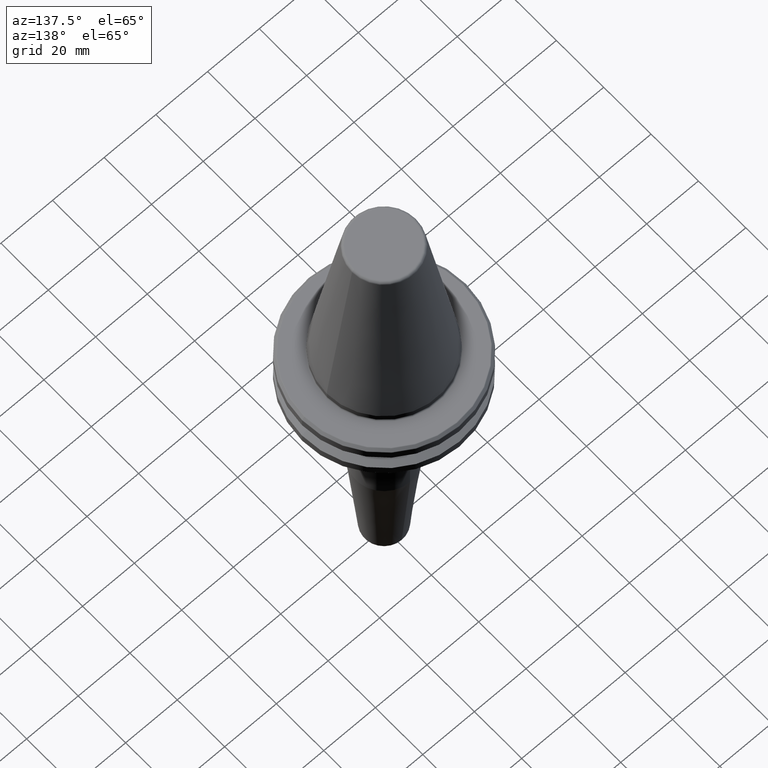
[diagram: clean part render]
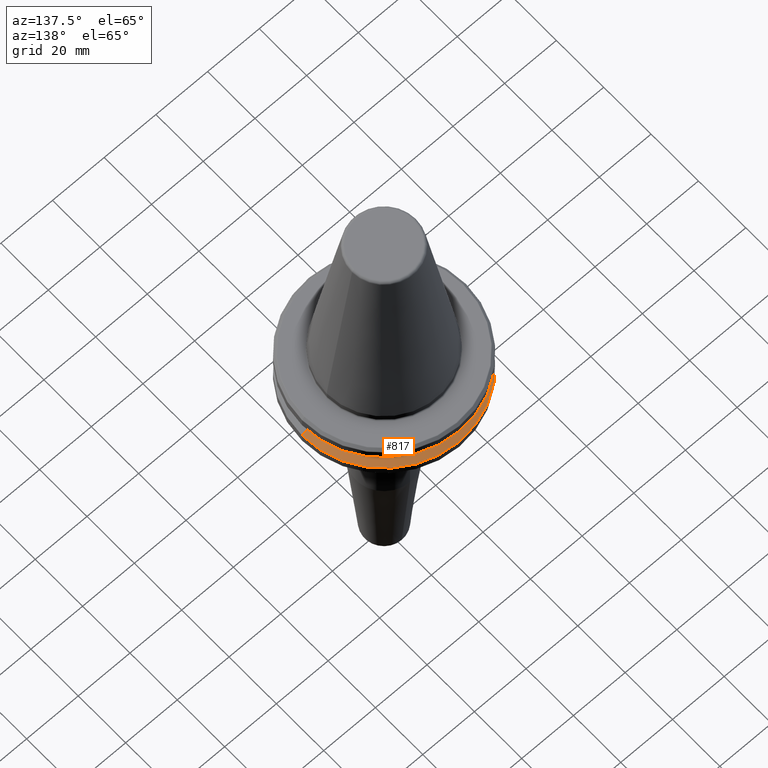
[diagram: same view with one face highlighted and labeled with its STEP entity id]
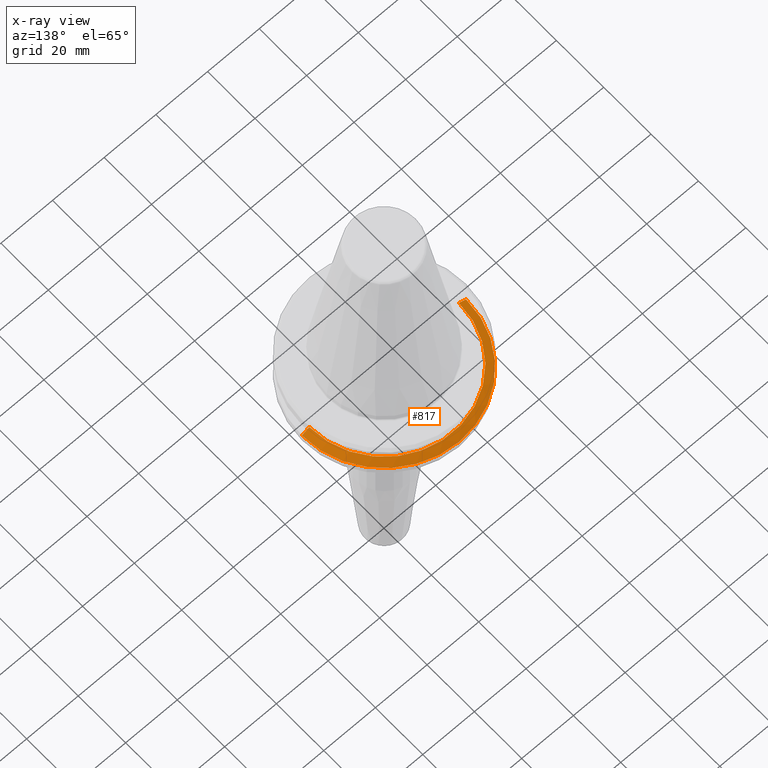
[diagram: x-ray of the same camera — body ghosted, the highlighted face saturated]
A machine part, auxiliary view. The second image highlights one B-rep face of the part: STEP entity #817.
The next image is the same camera in x-ray: the body ghosted, the highlighted face saturated — about 0% of this face is hidden behind the body in this view.
In plain terms, the highlighted conical surface has half-angle 60 deg.
Its self-contained STEP definition (entity closure, byte-faithful):
#24 = CARTESIAN_POINT ( 'NONE',  ( 31.75000000000000000, 0.0000000000000000000, -14.62183664205671200 ) ) ;
#45 = VERTEX_POINT ( 'NONE', #1254 ) ;
#62 = DIRECTION ( 'NONE',  ( 0.8660254037844420400, 1.060575238724911000E-016, -0.4999999999999943900 ) ) ;
#74 = DIRECTION ( 'NONE',  ( -0.0000000000000000000, -0.0000000000000000000, 1.000000000000000000 ) ) ;
#126 = AXIS2_PLACEMENT_3D ( 'NONE', #130, #629, #722 ) ;
#129 = ORIENTED_EDGE ( 'NONE', *, *, #438, .F. ) ;
#130 = CARTESIAN_POINT ( 'NONE',  ( 0.0000000000000000000, 0.0000000000000000000, -13.00000000000001100 ) ) ;
#258 = ORIENTED_EDGE ( 'NONE', *, *, #1205, .F. ) ;
#269 = CARTESIAN_POINT ( 'NONE',  ( 28.94089653438085100, 3.716245608910634800E-015, -13.00000000000001100 ) ) ;
#303 = EDGE_CURVE ( 'NONE', #425, #45, #610, .T. ) ;
#353 = AXIS2_PLACEMENT_3D ( 'NONE', #432, #811, #1186 ) ;
#425 = VERTEX_POINT ( 'NONE', #24 ) ;
#432 = CARTESIAN_POINT ( 'NONE',  ( 0.0000000000000000000, 0.0000000000000000000, -13.00000000000001100 ) ) ;
#438 = EDGE_CURVE ( 'NONE', #1028, #672, #1165, .T. ) ;
#494 = AXIS2_PLACEMENT_3D ( 'NONE', #574, #74, #561 ) ;
#498 = LINE ( 'NONE', #643, #1226 ) ;
#550 = CARTESIAN_POINT ( 'NONE',  ( -28.94089653438085100, 0.0000000000000000000, -13.00000000000001100 ) ) ;
#561 = DIRECTION ( 'NONE',  ( 1.000000000000000000, 0.0000000000000000000, 0.0000000000000000000 ) ) ;
#574 = CARTESIAN_POINT ( 'NONE',  ( 0.0000000000000000000, 0.0000000000000000000, -14.62183664205671200 ) ) ;
#610 = CIRCLE ( 'NONE', #494, 31.75000000000000000 ) ;
#629 = DIRECTION ( 'NONE',  ( -0.0000000000000000000, -0.0000000000000000000, 1.000000000000000000 ) ) ;
#643 = CARTESIAN_POINT ( 'NONE',  ( 28.94089653438085100, 3.544237630528423800E-015, -13.00000000000001100 ) ) ;
#672 = VERTEX_POINT ( 'NONE', #1162 ) ;
#722 = DIRECTION ( 'NONE',  ( 1.000000000000000000, 0.0000000000000000000, 0.0000000000000000000 ) ) ;
#740 = LINE ( 'NONE', #550, #1258 ) ;
#774 = FACE_OUTER_BOUND ( 'NONE', #905, .T. ) ;
#811 = DIRECTION ( 'NONE',  ( 0.0000000000000000000, 0.0000000000000000000, -1.000000000000000000 ) ) ;
#817 = ADVANCED_FACE ( 'NONE', ( #774 ), #979, .T. ) ;
#849 = ORIENTED_EDGE ( 'NONE', *, *, #303, .T. ) ;
#905 = EDGE_LOOP ( 'NONE', ( #129, #1222, #849, #258 ) ) ;
#979 = CONICAL_SURFACE ( 'NONE', #353, 28.94089653438085100, 1.047197551196604300 ) ;
#1028 = VERTEX_POINT ( 'NONE', #269 ) ;
#1162 = CARTESIAN_POINT ( 'NONE',  ( -28.94089653438085100, 0.0000000000000000000, -13.00000000000001100 ) ) ;
#1165 = CIRCLE ( 'NONE', #126, 28.94089653438085100 ) ;
#1186 = DIRECTION ( 'NONE',  ( -1.000000000000000000, 0.0000000000000000000, 0.0000000000000000000 ) ) ;
#1205 = EDGE_CURVE ( 'NONE', #672, #45, #740, .T. ) ;
#1219 = EDGE_CURVE ( 'NONE', #1028, #425, #498, .T. ) ;
#1220 = DIRECTION ( 'NONE',  ( -0.8660254037844420400, 0.0000000000000000000, -0.4999999999999943900 ) ) ;
#1222 = ORIENTED_EDGE ( 'NONE', *, *, #1219, .T. ) ;
#1226 = VECTOR ( 'NONE', #62, 999.9999999999998900 ) ;
#1254 = CARTESIAN_POINT ( 'NONE',  ( -31.75000000000000000, 3.888253587292846500E-015, -14.62183664205671200 ) ) ;
#1258 = VECTOR ( 'NONE', #1220, 999.9999999999998900 ) ;